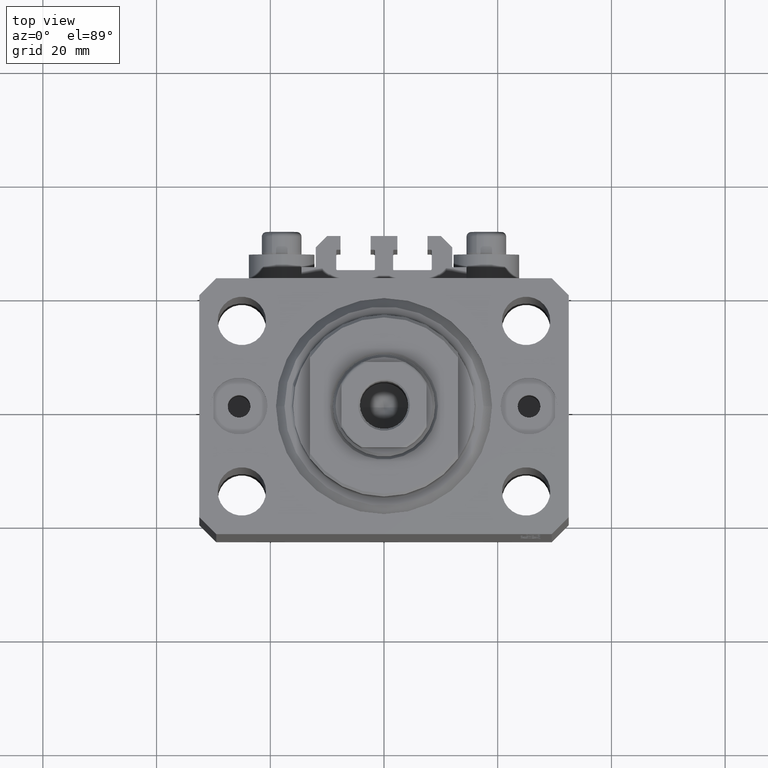
[diagram: clean part render]
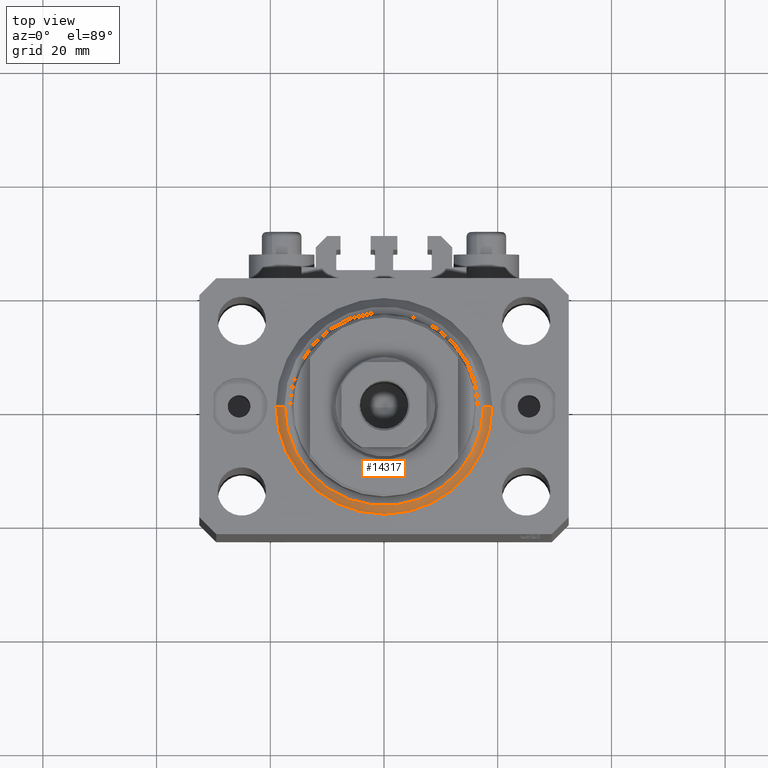
[diagram: same view with one face highlighted and labeled with its STEP entity id]
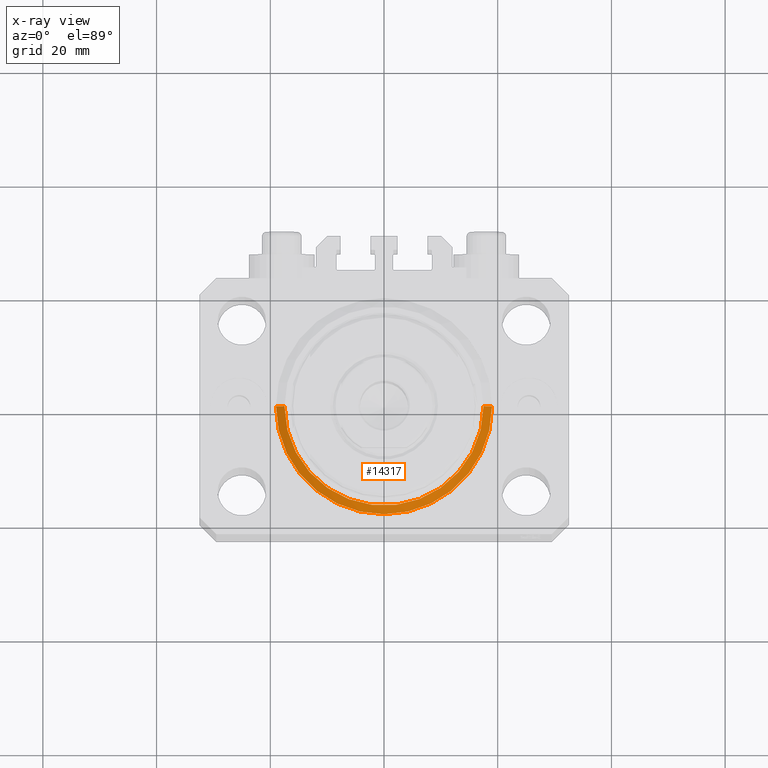
[diagram: x-ray of the same camera — body ghosted, the highlighted face saturated]
A machine part, top view. The second image highlights one B-rep face of the part: STEP entity #14317.
The next image is the same camera in x-ray: the body ghosted, the highlighted face saturated — about 0% of this face is hidden behind the body in this view.
In plain terms, the highlighted conical surface has half-angle 45 deg.
Its self-contained STEP definition (entity closure, byte-faithful):
#64 = DIRECTION ( 'NONE',  ( 1.000000000000000000, 0.000000000000000000, 0.000000000000000000 ) ) ;
#260 = DIRECTION ( 'NONE',  ( -0.7071067811865483499, 8.659560562354943952E-17, 0.7071067811865467956 ) ) ;
#1431 = CARTESIAN_POINT ( 'NONE',  ( 19.00000000000000000, 2.326828918379970970E-15, 1.500000000000004885 ) ) ;
#1440 = VERTEX_POINT ( 'NONE', #1431 ) ;
#2252 = DIRECTION ( 'NONE',  ( -0.000000000000000000, -0.000000000000000000, -1.000000000000000000 ) ) ;
#3407 = EDGE_CURVE ( 'NONE', #40213, #1440, #35803, .T. ) ;
#5694 = LINE ( 'NONE', #31215, #25995 ) ;
#6363 = CARTESIAN_POINT ( 'NONE',  ( 17.49999999999999289, 0.000000000000000000, 0.000000000000000000 ) ) ;
#6816 = ORIENTED_EDGE ( 'NONE', *, *, #34290, .F. ) ;
#10445 = CARTESIAN_POINT ( 'NONE',  ( -17.49999999999999289, 2.234980408443919215E-15, 0.000000000000000000 ) ) ;
#11240 = VERTEX_POINT ( 'NONE', #6363 ) ;
#14317 = ADVANCED_FACE ( 'NONE', ( #43495 ), #29927, .T. ) ;
#17244 = CARTESIAN_POINT ( 'NONE',  ( 0.000000000000000000, 0.000000000000000000, 1.500000000000004885 ) ) ;
#17724 = DIRECTION ( 'NONE',  ( -0.000000000000000000, -0.000000000000000000, 1.000000000000000000 ) ) ;
#18396 = LINE ( 'NONE', #32962, #34870 ) ;
#19056 = VERTEX_POINT ( 'NONE', #10445 ) ;
#21929 = AXIS2_PLACEMENT_3D ( 'NONE', #46146, #2252, #28254 ) ;
#23076 = AXIS2_PLACEMENT_3D ( 'NONE', #39670, #17724, #64 ) ;
#24649 = DIRECTION ( 'NONE',  ( 1.000000000000000000, 0.000000000000000000, 0.000000000000000000 ) ) ;
#25995 = VECTOR ( 'NONE', #45775, 1000.000000000000000 ) ;
#28235 = DIRECTION ( 'NONE',  ( -0.000000000000000000, -0.000000000000000000, 1.000000000000000000 ) ) ;
#28254 = DIRECTION ( 'NONE',  ( 1.000000000000000000, 0.000000000000000000, 0.000000000000000000 ) ) ;
#29927 = CONICAL_SURFACE ( 'NONE', #23076, 19.00000000000000000, 0.7853981633974492782 ) ;
#29938 = EDGE_LOOP ( 'NONE', ( #6816, #40060, #34269, #32913 ) ) ;
#31215 = CARTESIAN_POINT ( 'NONE',  ( 19.00000000000000000, 0.000000000000000000, 1.500000000000004885 ) ) ;
#32913 = ORIENTED_EDGE ( 'NONE', *, *, #3407, .F. ) ;
#32962 = CARTESIAN_POINT ( 'NONE',  ( -19.00000000000000000, 2.326828918379970970E-15, 1.500000000000004885 ) ) ;
#33381 = CIRCLE ( 'NONE', #21929, 17.49999999999999289 ) ;
#34269 = ORIENTED_EDGE ( 'NONE', *, *, #43774, .T. ) ;
#34290 = EDGE_CURVE ( 'NONE', #19056, #40213, #18396, .T. ) ;
#34870 = VECTOR ( 'NONE', #260, 1000.000000000000000 ) ;
#35803 = CIRCLE ( 'NONE', #44975, 19.00000000000000000 ) ;
#36077 = EDGE_CURVE ( 'NONE', #11240, #19056, #33381, .T. ) ;
#38836 = CARTESIAN_POINT ( 'NONE',  ( -19.00000000000000000, 0.000000000000000000, 1.500000000000004885 ) ) ;
#39670 = CARTESIAN_POINT ( 'NONE',  ( 0.000000000000000000, 0.000000000000000000, 1.500000000000004885 ) ) ;
#40060 = ORIENTED_EDGE ( 'NONE', *, *, #36077, .F. ) ;
#40213 = VERTEX_POINT ( 'NONE', #38836 ) ;
#43495 = FACE_OUTER_BOUND ( 'NONE', #29938, .T. ) ;
#43774 = EDGE_CURVE ( 'NONE', #11240, #1440, #5694, .T. ) ;
#44975 = AXIS2_PLACEMENT_3D ( 'NONE', #17244, #28235, #24649 ) ;
#45775 = DIRECTION ( 'NONE',  ( 0.7071067811865483499, 0.000000000000000000, 0.7071067811865467956 ) ) ;
#46146 = CARTESIAN_POINT ( 'NONE',  ( 0.000000000000000000, 0.000000000000000000, 0.000000000000000000 ) ) ;